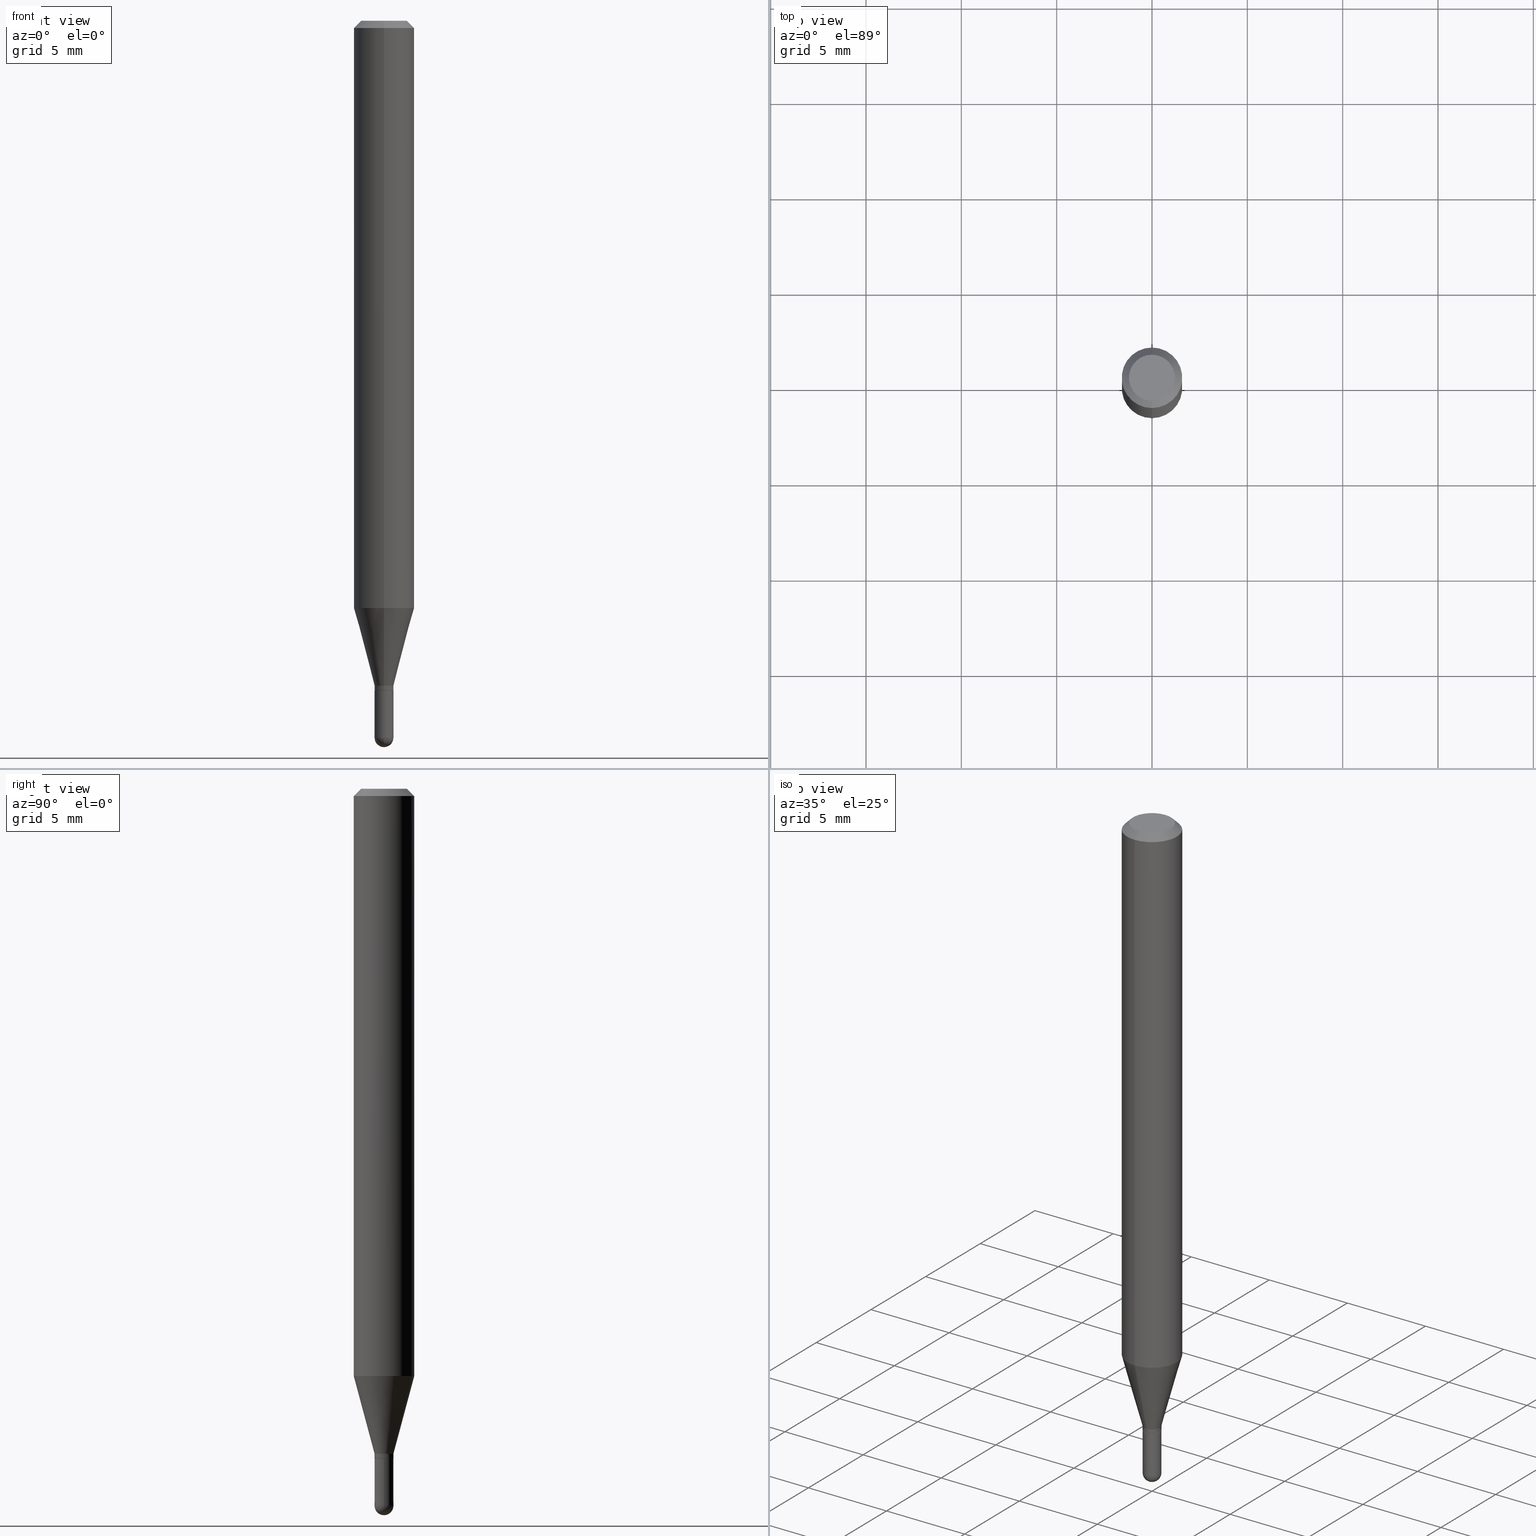
[diagram: canonical four-view strip — front | top / right | iso, engineering-drawing reading convention]
A machine part, canonical four-view strip (front | top / right | iso — engineering-drawing reading convention). The complete STEP part file that produces these views, byte-faithful:
ISO-10303-21;
HEADER;
FILE_DESCRIPTION (( 'STEP AP203' ),
    '1' );
FILE_NAME ('00477.STEP',
    '2024-03-07T17:59:33',
    ( '' ),
    ( '' ),
    'SwSTEP 2.0',
    'SolidWorks 2023',
    '' );
FILE_SCHEMA (( 'CONFIG_CONTROL_DESIGN' ));
ENDSEC;

DATA;
#1 = CARTESIAN_POINT ( 'NONE',  ( 3.382086302448005049E-29, -4.828714476369186734E-15, -1.383000000000000229 ) ) ;
#2 = ORIENTED_EDGE ( 'NONE', *, *, #397, .T. ) ;
#3 = DIRECTION ( 'NONE',  ( 1.839019923739599526E-15, 0.2588190451025248473, 0.9659258262890670910 ) ) ;
#4 = EDGE_CURVE ( 'NONE', #85, #42, #150, .T. ) ;
#5 = ORIENTED_EDGE ( 'NONE', *, *, #271, .F. ) ;
#6 = AXIS2_PLACEMENT_3D ( 'NONE', #460, #298, #258 ) ;
#7 = CYLINDRICAL_SURFACE ( 'NONE', #236, 0.01949999999999999997 ) ;
#8 = CIRCLE ( 'NONE', #255, 0.01949999999999999303 ) ;
#9 = ORIENTED_EDGE ( 'NONE', *, *, #271, .T. ) ;
#10 = EDGE_CURVE ( 'NONE', #42, #93, #144, .T. ) ;
#11 = EDGE_LOOP ( 'NONE', ( #459, #452, #421, #327 ) ) ;
#12 = FACE_OUTER_BOUND ( 'NONE', #412, .T. ) ;
#13 = ORIENTED_EDGE ( 'NONE', *, *, #367, .F. ) ;
#14 = EDGE_CURVE ( 'NONE', #360, #245, #100, .T. ) ;
#15 = ORIENTED_EDGE ( 'NONE', *, *, #418, .T. ) ;
#16 = DIRECTION ( 'NONE',  ( -1.000000000000000000, 7.105427357601001070E-15, -4.926315508542082329E-29 ) ) ;
#17 = ORIENTED_EDGE ( 'NONE', *, *, #94, .F. ) ;
#18 = ORIENTED_EDGE ( 'NONE', *, *, #484, .F. ) ;
#19 = AXIS2_PLACEMENT_3D ( 'NONE', #41, #16, #53 ) ;
#20 = CARTESIAN_POINT ( 'NONE',  ( 3.382083358954044842E-29, -4.828718691620071353E-15, -1.383000000000000229 ) ) ;
#21 = VERTEX_POINT ( 'NONE', #262 ) ;
#22 = APPROVAL_STATUS ( 'not_yet_approved' ) ;
#23 = CARTESIAN_POINT ( 'NONE',  ( -1.361677722148480659E-16, -0.01950000000000471495, -1.372999999999999998 ) ) ;
#24 = FACE_OUTER_BOUND ( 'NONE', #456, .T. ) ;
#25 = COORDINATED_UNIVERSAL_TIME_OFFSET ( 5, 0, .BEHIND. ) ;
#26 = CARTESIAN_POINT ( 'NONE',  ( 1.361677722149159819E-16, 0.01949999999999517050, -1.383000000000000229 ) ) ;
#27 = AXIS2_PLACEMENT_3D ( 'NONE', #490, #60, #386 ) ;
#28 = CONICAL_SURFACE ( 'NONE', #312, 0.01899999999999999953, 0.7853981633974718157 ) ;
#29 = LOCAL_TIME ( 12, 59, 33.00000000000000000, #498 ) ;
#30 = CARTESIAN_POINT ( 'NONE',  ( 3.668206401787426008E-31, -5.237217436409098206E-17, -0.01500000000000000812 ) ) ;
#31 = CARTESIAN_POINT ( 'NONE',  ( -1.361677722148483124E-16, -0.01950000000000481210, -1.382500000000000284 ) ) ;
#32 = DIRECTION ( 'NONE',  ( 6.982962677686265922E-15, 1.000000000000000000, -3.483106191921935554E-15 ) ) ;
#33 = DIRECTION ( 'NONE',  ( 0.000000000000000000, 0.000000000000000000, 1.000000000000000000 ) ) ;
#34 = CARTESIAN_POINT ( 'NONE',  ( 0.000000000000000000, 0.000000000000000000, 0.000000000000000000 ) ) ;
#35 = DIRECTION ( 'NONE',  ( 2.445470934524949177E-29, -3.491478290939396470E-15, -1.000000000000000000 ) ) ;
#36 = EDGE_CURVE ( 'NONE', #483, #491, #302, .T. ) ;
#37 = ADVANCED_BREP_SHAPE_REPRESENTATION ( '00477', ( #400, #403, #92 ), #369 ) ;
#38 = CLOSED_SHELL ( 'NONE', ( #208, #362, #239, #213, #86, #263, #250, #152, #128, #229, #314, #380 ) ) ;
#39 = CONICAL_SURFACE ( 'NONE', #378, 0.06250000000000000000, 0.7853981633974483900 ) ;
#40 = CARTESIAN_POINT ( 'NONE',  ( 0.01949999999999999997, -4.964886463834953365E-15, -1.383000000000000229 ) ) ;
#41 = CARTESIAN_POINT ( 'NONE',  ( 3.618848993293195667E-29, -5.171526183415615213E-15, -1.480500000000000149 ) ) ;
#42 = VERTEX_POINT ( 'NONE', #428 ) ;
#43 = ORIENTED_EDGE ( 'NONE', *, *, #209, .F. ) ;
#44 = CARTESIAN_POINT ( 'NONE',  ( 3.382086302448005049E-29, -4.828714476369186734E-15, -1.383000000000000229 ) ) ;
#45 = EDGE_CURVE ( 'NONE', #299, #360, #432, .T. ) ;
#46 = EDGE_LOOP ( 'NONE', ( #165, #9, #54, #318, #15 ) ) ;
#47 = AXIS2_PLACEMENT_3D ( 'NONE', #102, #222, #216 ) ;
#48 = ORIENTED_EDGE ( 'NONE', *, *, #269, .F. ) ;
#49 = CIRCLE ( 'NONE', #437, 0.01949999999999999303 ) ;
#50 = CARTESIAN_POINT ( 'NONE',  ( 1.350031197944528297E-16, 0.01899999999999517006, -1.383000000000000229 ) ) ;
#51 = ORIENTED_EDGE ( 'NONE', *, *, #80, .F. ) ;
#52 = ORIENTED_EDGE ( 'NONE', *, *, #94, .T. ) ;
#53 = DIRECTION ( 'NONE',  ( -7.105427357600999492E-15, -1.000000000000000000, 0.000000000000000000 ) ) ;
#54 = ORIENTED_EDGE ( 'NONE', *, *, #14, .F. ) ;
#55 = CARTESIAN_POINT ( 'NONE',  ( 3.380863566980742652E-29, -4.826968737223717493E-15, -1.382500000000000284 ) ) ;
#56 = APPROVAL_DATE_TIME ( #492, #252 ) ;
#57 = CIRCLE ( 'NONE', #303, 0.06250000000000000000 ) ;
#58 = CARTESIAN_POINT ( 'NONE',  ( 0.01949999999999999997, -1.361677722148821841E-16, 9.508544712802074656E-31 ) ) ;
#59 = COORDINATED_UNIVERSAL_TIME_OFFSET ( 5, 0, .BEHIND. ) ;
#60 = DIRECTION ( 'NONE',  ( -2.445470934524949177E-29, 3.491478290939396470E-15, 1.000000000000000000 ) ) ;
#61 = SECURITY_CLASSIFICATION_LEVEL ( 'unclassified' ) ;
#62 = CARTESIAN_POINT ( 'NONE',  ( 3.667369422145755706E-29, -5.238416038893887987E-15, -1.500000000000000222 ) ) ;
#63 = CARTESIAN_POINT ( 'NONE',  ( 2.166800807652631744E-46, -3.093611898592751008E-32, -8.860464367259179320E-18 ) ) ;
#64 = EDGE_CURVE ( 'NONE', #132, #286, #122, .T. ) ;
#65 = SPHERICAL_SURFACE ( 'NONE', #178, 0.01949999999999994446 ) ;
#66 = CARTESIAN_POINT ( 'NONE',  ( 4.440892098500920012E-16, 0.06249999999999574646, -1.212521815274538728 ) ) ;
#67 = DATE_AND_TIME ( #297, #349 ) ;
#68 = EDGE_CURVE ( 'NONE', #280, #301, #395, .T. ) ;
#69 = FACE_OUTER_BOUND ( 'NONE', #136, .T. ) ;
#70 = VECTOR ( 'NONE', #501, 39.37007874015748143 ) ;
#71 = AXIS2_PLACEMENT_3D ( 'NONE', #451, #287, #371 ) ;
#72 = APPROVAL_PERSON_ORGANIZATION ( #424, #252, #96 ) ;
#73 = EDGE_CURVE ( 'NONE', #245, #360, #201, .T. ) ;
#74 = DIRECTION ( 'NONE',  ( -2.445470934524949177E-29, 3.491478290939396470E-15, 1.000000000000000000 ) ) ;
#75 = APPROVAL ( #443, 'UNSPECIFIED' ) ;
#76 = EDGE_CURVE ( 'NONE', #363, #85, #172, .T. ) ;
#77 = CARTESIAN_POINT ( 'NONE',  ( 3.840629472727447874E-16, 0.04749999999999999362, -1.747056831868805136E-16 ) ) ;
#78 = EDGE_CURVE ( 'NONE', #93, #196, #496, .T. ) ;
#79 = CARTESIAN_POINT ( 'NONE',  ( -4.364351673553912750E-16, -0.06250000000000005551, -0.01499999999999979128 ) ) ;
#80 = EDGE_CURVE ( 'NONE', #363, #140, #295, .T. ) ;
#81 = VECTOR ( 'NONE', #406, 39.37007874015748143 ) ;
#82 = FACE_OUTER_BOUND ( 'NONE', #477, .T. ) ;
#83 = ORIENTED_EDGE ( 'NONE', *, *, #190, .T. ) ;
#84 = LINE ( 'NONE', #159, #247 ) ;
#85 = VERTEX_POINT ( 'NONE', #294 ) ;
#86 = ADVANCED_FACE ( 'NONE', ( #107 ), #246, .T. ) ;
#87 = FACE_OUTER_BOUND ( 'NONE', #46, .T. ) ;
#88 = ORIENTED_EDGE ( 'NONE', *, *, #351, .T. ) ;
#89 = ORIENTED_EDGE ( 'NONE', *, *, #315, .T. ) ;
#90 = CONICAL_SURFACE ( 'NONE', #289, 0.01899999999999999953, 0.7853981633974718157 ) ;
#91 = DIRECTION ( 'NONE',  ( -6.982962677686265922E-15, -1.000000000000000000, 0.000000000000000000 ) ) ;
#92 = AXIS2_PLACEMENT_3D ( 'NONE', #215, #33, #488 ) ;
#93 = VERTEX_POINT ( 'NONE', #461 ) ;
#94 = EDGE_CURVE ( 'NONE', #140, #42, #338, .T. ) ;
#95 = ORIENTED_EDGE ( 'NONE', *, *, #10, .T. ) ;
#96 = APPROVAL_ROLE ( '' ) ;
#97 = DIRECTION ( 'NONE',  ( -2.445470934524949177E-29, 3.491478290939396470E-15, 1.000000000000000000 ) ) ;
#98 = EDGE_CURVE ( 'NONE', #140, #363, #114, .T. ) ;
#99 = DIRECTION ( 'NONE',  ( -2.445470934524949177E-29, 3.491478290939396470E-15, 1.000000000000000000 ) ) ;
#100 = CIRCLE ( 'NONE', #108, 0.01949999999999999997 ) ;
#101 = AXIS2_PLACEMENT_3D ( 'NONE', #449, #244, #277 ) ;
#102 = CARTESIAN_POINT ( 'NONE',  ( 3.357631593102754865E-29, -4.793799693459790864E-15, -1.372999999999999998 ) ) ;
#103 = APPROVAL_PERSON_ORGANIZATION ( #232, #75, #475 ) ;
#104 = PERSON_AND_ORGANIZATION ( #195, #390 ) ;
#105 = DIRECTION ( 'NONE',  ( 6.982962677686265922E-15, 1.000000000000000000, -3.491478290939396076E-15 ) ) ;
#106 = DIRECTION ( 'NONE',  ( -2.445468806185136597E-29, 3.491481338843145583E-15, 1.000000000000000000 ) ) ;
#107 = FACE_OUTER_BOUND ( 'NONE', #370, .T. ) ;
#108 = AXIS2_PLACEMENT_3D ( 'NONE', #20, #106, #137 ) ;
#109 = VECTOR ( 'NONE', #393, 39.37007874015748143 ) ;
#110 = DIRECTION ( 'NONE',  ( 4.937700262164548042E-15, 0.7071067811865451302, -0.7071067811865499042 ) ) ;
#111 = APPROVAL_ROLE ( '' ) ;
#112 = DIRECTION ( 'NONE',  ( -2.445470934524949177E-29, 3.491478290939396076E-15, 1.000000000000000000 ) ) ;
#113 = CYLINDRICAL_SURFACE ( 'NONE', #497, 0.01949999999999992017 ) ;
#114 = CIRCLE ( 'NONE', #414, 0.01949999999999992017 ) ;
#115 = APPROVAL_DATE_TIME ( #118, #75 ) ;
#116 = CARTESIAN_POINT ( 'NONE',  ( -1.385558334731830759E-16, -0.01950000000000513822, -1.480500000000000149 ) ) ;
#117 = CARTESIAN_POINT ( 'NONE',  ( 3.357631593102754865E-29, -4.793799693459790864E-15, -1.372999999999999998 ) ) ;
#118 = DATE_AND_TIME ( #399, #281 ) ;
#119 = DIRECTION ( 'NONE',  ( -2.445468806185136597E-29, 3.491481338843145583E-15, 1.000000000000000000 ) ) ;
#120 = ORIENTED_EDGE ( 'NONE', *, *, #500, .F. ) ;
#121 = EDGE_CURVE ( 'NONE', #301, #280, #472, .T. ) ;
#122 = CIRCLE ( 'NONE', #177, 0.01949999999999999303 ) ;
#123 = CONICAL_SURFACE ( 'NONE', #185, 0.01949999999999992017, 0.2617993877991501850 ) ;
#124 = CC_DESIGN_SECURITY_CLASSIFICATION ( #379, ( #438 ) ) ;
#125 = CARTESIAN_POINT ( 'NONE',  ( 0.000000000000000000, 0.000000000000000000, 0.000000000000000000 ) ) ;
#126 = VERTEX_POINT ( 'NONE', #62 ) ;
#127 = ORIENTED_EDGE ( 'NONE', *, *, #418, .F. ) ;
#128 = ADVANCED_FACE ( 'NONE', ( #24 ), #495, .F. ) ;
#129 = FACE_OUTER_BOUND ( 'NONE', #416, .T. ) ;
#130 = ORIENTED_EDGE ( 'NONE', *, *, #121, .F. ) ;
#131 = DIRECTION ( 'NONE',  ( -2.445468806185136597E-29, 3.491481338843145583E-15, 1.000000000000000000 ) ) ;
#132 = VERTEX_POINT ( 'NONE', #261 ) ;
#133 = ADVANCED_FACE ( 'NONE', ( #220 ), #388, .F. ) ;
#134 = VECTOR ( 'NONE', #110, 39.37007874015748143 ) ;
#135 = MECHANICAL_CONTEXT ( 'NONE', #420, 'mechanical' ) ;
#136 = EDGE_LOOP ( 'NONE', ( #429, #171, #480, #17 ) ) ;
#137 = DIRECTION ( 'NONE',  ( 1.000000000000000000, -6.982962677686258033E-15, 0.000000000000000000 ) ) ;
#138 = EDGE_CURVE ( 'NONE', #280, #491, #149, .T. ) ;
#139 = DIRECTION ( 'NONE',  ( 1.000000000000000000, -6.982962677686258033E-15, 0.000000000000000000 ) ) ;
#140 = VERTEX_POINT ( 'NONE', #31 ) ;
#141 = AXIS2_PLACEMENT_3D ( 'NONE', #147, #431, #384 ) ;
#142 = APPLICATION_PROTOCOL_DEFINITION ( 'international standard', 'config_control_design', 1994, #420 ) ;
#143 = AXIS2_PLACEMENT_3D ( 'NONE', #176, #464, #105 ) ;
#144 = LINE ( 'NONE', #23, #454 ) ;
#145 = PERSON_AND_ORGANIZATION_ROLE ( 'classification_officer' ) ;
#146 = DIRECTION ( 'NONE',  ( -6.982962677686266711E-15, -1.000000000000000000, 3.491478290939396470E-15 ) ) ;
#147 = CARTESIAN_POINT ( 'NONE',  ( 3.380863566980742652E-29, -4.826968737223717493E-15, -1.382500000000000284 ) ) ;
#148 = EDGE_LOOP ( 'NONE', ( #198, #151, #95, #120 ) ) ;
#149 = LINE ( 'NONE', #434, #341 ) ;
#150 = CIRCLE ( 'NONE', #157, 0.01949999999999992017 ) ;
#151 = ORIENTED_EDGE ( 'NONE', *, *, #4, .T. ) ;
#152 = ADVANCED_FACE ( 'NONE', ( #512 ), #39, .T. ) ;
#153 = CARTESIAN_POINT ( 'NONE',  ( 3.618848993293195667E-29, -5.171526183415615213E-15, -1.480500000000000149 ) ) ;
#154 = DIRECTION ( 'NONE',  ( -6.982962677686265922E-15, -1.000000000000000000, 3.483106191921935554E-15 ) ) ;
#155 = PRODUCT_DEFINITION ( 'UNKNOWN', '', #438, #181 ) ;
#156 = LINE ( 'NONE', #405, #486 ) ;
#157 = AXIS2_PLACEMENT_3D ( 'NONE', #465, #174, #499 ) ;
#158 = PLANE ( 'NONE',  #211 ) ;
#159 = CARTESIAN_POINT ( 'NONE',  ( 1.385558334732525203E-16, 0.01949999999999512887, -1.372999999999999998 ) ) ;
#160 = EDGE_LOOP ( 'NONE', ( #330, #162, #366, #51 ) ) ;
#161 = CARTESIAN_POINT ( 'NONE',  ( 4.440892098500923957E-16, 0.06249999999999995143, -0.01500000000000022669 ) ) ;
#162 = ORIENTED_EDGE ( 'NONE', *, *, #336, .T. ) ;
#163 = AXIS2_PLACEMENT_3D ( 'NONE', #63, #335, #146 ) ;
#164 = AXIS2_PLACEMENT_3D ( 'NONE', #230, #35, #32 ) ;
#165 = ORIENTED_EDGE ( 'NONE', *, *, #484, .T. ) ;
#166 = DIRECTION ( 'NONE',  ( 1.000000000000000000, -6.982962677686260400E-15, 0.000000000000000000 ) ) ;
#167 = ORIENTED_EDGE ( 'NONE', *, *, #14, .T. ) ;
#168 = DIRECTION ( 'NONE',  ( 1.000000000000000000, -6.982962677686265922E-15, 4.876176775795935793E-29 ) ) ;
#169 = ORIENTED_EDGE ( 'NONE', *, *, #367, .T. ) ;
#170 = DIRECTION ( 'NONE',  ( 5.024295867788180719E-15, 0.7071067811865666686, 0.7071067811865284769 ) ) ;
#171 = ORIENTED_EDGE ( 'NONE', *, *, #76, .T. ) ;
#172 = LINE ( 'NONE', #344, #70 ) ;
#173 = DATE_TIME_ROLE ( 'creation_date' ) ;
#174 = DIRECTION ( 'NONE',  ( -2.445470934524949177E-29, 3.491478290939396470E-15, 1.000000000000000000 ) ) ;
#175 = EDGE_CURVE ( 'NONE', #301, #483, #401, .T. ) ;
#176 = CARTESIAN_POINT ( 'NONE',  ( 3.316907271900976096E-16, 0.04749999999999999362, -1.702754510032508993E-16 ) ) ;
#177 = AXIS2_PLACEMENT_3D ( 'NONE', #254, #182, #466 ) ;
#178 = AXIS2_PLACEMENT_3D ( 'NONE', #279, #237, #409 ) ;
#179 = AXIS2_PLACEMENT_3D ( 'NONE', #463, #352, #385 ) ;
#180 = DIRECTION ( 'NONE',  ( 2.438088387897960049E-29, -3.491481338843145188E-15, -1.000000000000000000 ) ) ;
#181 = DESIGN_CONTEXT ( 'detailed design', #448, 'design' ) ;
#182 = DIRECTION ( 'NONE',  ( -2.445468806185136597E-29, 3.491481338843145583E-15, 1.000000000000000000 ) ) ;
#183 = CARTESIAN_POINT ( 'NONE',  ( 3.668206401787426008E-31, -5.237217436409098206E-17, -0.01500000000000000812 ) ) ;
#184 = CARTESIAN_POINT ( 'NONE',  ( -0.01949999999999999997, -4.860372573415455392E-15, -1.383000000000000229 ) ) ;
#185 = AXIS2_PLACEMENT_3D ( 'NONE', #117, #74, #188 ) ;
#186 = CC_DESIGN_APPROVAL ( #75, ( #379 ) ) ;
#187 = CARTESIAN_POINT ( 'NONE',  ( 1.367794766338528106E-16, 0.01899999999999517006, -1.383000000000000229 ) ) ;
#188 = DIRECTION ( 'NONE',  ( -6.982962677686266711E-15, -1.000000000000000000, 0.000000000000000000 ) ) ;
#189 = DIRECTION ( 'NONE',  ( -2.445470934524949177E-29, 3.491478290939396470E-15, 1.000000000000000000 ) ) ;
#190 = EDGE_CURVE ( 'NONE', #196, #483, #156, .T. ) ;
#191 = FACE_OUTER_BOUND ( 'NONE', #160, .T. ) ;
#192 = CIRCLE ( 'NONE', #179, 0.01949999999999992017 ) ;
#193 = PRODUCT_RELATED_PRODUCT_CATEGORY ( 'detail', '', ( #283 ) ) ;
#194 = DIRECTION ( 'NONE',  ( -2.445468806185136597E-29, 3.491481338843145583E-15, 1.000000000000000000 ) ) ;
#195 = PERSON ( 'UNSPECIFIED', 'UNSPECIFIED', 'UNSPECIFIED', ('UNSPECIFIED'), ('UNSPECIFIED'), ('UNSPECIFIED') ) ;
#196 = VERTEX_POINT ( 'NONE', #66 ) ;
#197 = DIRECTION ( 'NONE',  ( -2.445470934524949177E-29, 3.491478290939396470E-15, 1.000000000000000000 ) ) ;
#198 = ORIENTED_EDGE ( 'NONE', *, *, #439, .F. ) ;
#199 = FACE_OUTER_BOUND ( 'NONE', #288, .T. ) ;
#200 = ORIENTED_EDGE ( 'NONE', *, *, #73, .F. ) ;
#201 = CIRCLE ( 'NONE', #272, 0.01949999999999999997 ) ;
#202 = AXIS2_PLACEMENT_3D ( 'NONE', #326, #248, #442 ) ;
#203 = CYLINDRICAL_SURFACE ( 'NONE', #321, 0.01949999999999999997 ) ;
#204 = EDGE_LOOP ( 'NONE', ( #373, #83, #410, #240 ) ) ;
#205 = APPROVAL ( #292, 'UNSPECIFIED' ) ;
#206 = CYLINDRICAL_SURFACE ( 'NONE', #101, 0.01949999999999992017 ) ;
#207 = ORIENTED_EDGE ( 'NONE', *, *, #402, .T. ) ;
#208 = ADVANCED_FACE ( 'NONE', ( #69 ), #113, .T. ) ;
#209 = EDGE_CURVE ( 'NONE', #126, #21, #329, .T. ) ;
#210 = CARTESIAN_POINT ( 'NONE',  ( -1.361677722148816418E-16, -0.01949999999999992017, 6.808382667331796237E-17 ) ) ;
#211 = AXIS2_PLACEMENT_3D ( 'NONE', #316, #112, #233 ) ;
#212 = PERSON_AND_ORGANIZATION ( #195, #390 ) ;
#213 = ADVANCED_FACE ( 'NONE', ( #308 ), #311, .T. ) ;
#214 = CARTESIAN_POINT ( 'NONE',  ( 3.382083358954044842E-29, -4.828718691620071353E-15, -1.383000000000000229 ) ) ;
#215 = CARTESIAN_POINT ( 'NONE',  ( 0.000000000000000000, 0.000000000000000000, 0.000000000000000000 ) ) ;
#216 = DIRECTION ( 'NONE',  ( -6.982962677686266711E-15, -1.000000000000000000, 0.000000000000000000 ) ) ;
#217 = ORIENTED_EDGE ( 'NONE', *, *, #36, .T. ) ;
#218 = PERSON_AND_ORGANIZATION ( #195, #390 ) ;
#219 = UNCERTAINTY_MEASURE_WITH_UNIT (LENGTH_MEASURE( 1.000000000000000082E-05 ), #381, 'distance_accuracy_value', 'NONE');
#220 = FACE_OUTER_BOUND ( 'NONE', #325, .T. ) ;
#221 = CIRCLE ( 'NONE', #202, 0.01899999999999999953 ) ;
#222 = DIRECTION ( 'NONE',  ( -2.445470934524949177E-29, 3.491478290939396470E-15, 1.000000000000000000 ) ) ;
#223 = ORIENTED_EDGE ( 'NONE', *, *, #68, .T. ) ;
#224 = CARTESIAN_POINT ( 'NONE',  ( 3.668206401787426008E-31, -5.237217436409098206E-17, -0.01500000000000000812 ) ) ;
#225 = DIRECTION ( 'NONE',  ( 6.982962677686265133E-15, 1.000000000000000000, 0.000000000000000000 ) ) ;
#226 = ORIENTED_EDGE ( 'NONE', *, *, #351, .F. ) ;
#227 = ORIENTED_EDGE ( 'NONE', *, *, #336, .F. ) ;
#228 = PERSON_AND_ORGANIZATION ( #195, #390 ) ;
#229 = ADVANCED_FACE ( 'NONE', ( #394 ), #158, .F. ) ;
#230 = CARTESIAN_POINT ( 'NONE',  ( 3.668206401787426008E-31, -5.237217436409098206E-17, -0.01500000000000000812 ) ) ;
#231 = CIRCLE ( 'NONE', #365, 0.06250000000000000000 ) ;
#232 = PERSON_AND_ORGANIZATION ( #195, #390 ) ;
#233 = DIRECTION ( 'NONE',  ( -6.982962677686265922E-15, -1.000000000000000000, 3.491478290939396076E-15 ) ) ;
#234 = FACE_OUTER_BOUND ( 'NONE', #467, .T. ) ;
#235 = CARTESIAN_POINT ( 'NONE',  ( 2.965186856731312927E-29, -4.233493595321480770E-15, -1.212521815274538506 ) ) ;
#236 = AXIS2_PLACEMENT_3D ( 'NONE', #125, #119, #168 ) ;
#237 = DIRECTION ( 'NONE',  ( -1.000000000000000000, 6.982962677686265922E-15, -4.883557194083112340E-29 ) ) ;
#238 = ORIENTED_EDGE ( 'NONE', *, *, #10, .F. ) ;
#239 = ADVANCED_FACE ( 'NONE', ( #468 ), #415, .T. ) ;
#240 = ORIENTED_EDGE ( 'NONE', *, *, #397, .F. ) ;
#241 = CC_DESIGN_DATE_AND_TIME_ASSIGNMENT ( #407, #354, ( #379 ) ) ;
#242 = CARTESIAN_POINT ( 'NONE',  ( 1.385558334732523231E-16, 0.01949999999999503172, -1.382500000000000284 ) ) ;
#243 = ORIENTED_EDGE ( 'NONE', *, *, #500, .T. ) ;
#244 = DIRECTION ( 'NONE',  ( -2.445470934524949177E-29, 3.491478290939396470E-15, 1.000000000000000000 ) ) ;
#245 = VERTEX_POINT ( 'NONE', #184 ) ;
#246 = CONICAL_SURFACE ( 'NONE', #47, 0.01949999999999992017, 0.2617993877991501850 ) ;
#247 = VECTOR ( 'NONE', #3, 39.37007874015748143 ) ;
#248 = DIRECTION ( 'NONE',  ( -2.445470934524949177E-29, 3.491478290939396470E-15, 1.000000000000000000 ) ) ;
#249 = ORIENTED_EDGE ( 'NONE', *, *, #76, .F. ) ;
#250 = ADVANCED_FACE ( 'NONE', ( #508 ), #398, .T. ) ;
#251 = EDGE_LOOP ( 'NONE', ( #487, #130, #291, #217 ) ) ;
#252 = APPROVAL ( #22, 'UNSPECIFIED' ) ;
#253 = CALENDAR_DATE ( 2024, 7, 3 ) ;
#254 = CARTESIAN_POINT ( 'NONE',  ( 3.620516567557095727E-29, -5.169138122157277171E-15, -1.480500000000000149 ) ) ;
#255 = AXIS2_PLACEMENT_3D ( 'NONE', #317, #319, #324 ) ;
#256 = LENGTH_MEASURE_WITH_UNIT ( LENGTH_MEASURE( 0.02539999999999999897 ), #469 );
#257 = CC_DESIGN_APPROVAL ( #252, ( #438 ) ) ;
#258 = DIRECTION ( 'NONE',  ( -6.982962677686265922E-15, -1.000000000000000000, 4.370956789862821150E-15 ) ) ;
#259 = ORIENTED_EDGE ( 'NONE', *, *, #98, .F. ) ;
#260 = PERSON_AND_ORGANIZATION_ROLE ( 'design_supplier' ) ;
#261 = CARTESIAN_POINT ( 'NONE',  ( -0.01949999999999999303, -4.860372573415455392E-15, -1.480500000000000149 ) ) ;
#262 = CARTESIAN_POINT ( 'NONE',  ( 1.361677722149181512E-16, 0.01949999999999479927, -1.480500000000000149 ) ) ;
#263 = ADVANCED_FACE ( 'NONE', ( #440 ), #123, .T. ) ;
#264 = AXIS2_PLACEMENT_3D ( 'NONE', #34, #189, #471 ) ;
#265 = DIRECTION ( 'NONE',  ( -2.445470934524948897E-29, 3.491478290939396076E-15, 1.000000000000000000 ) ) ;
#266 = EDGE_CURVE ( 'NONE', #491, #483, #57, .T. ) ;
#267 = DIRECTION ( 'NONE',  ( 2.445470934524949177E-29, -3.491478290939396470E-15, -1.000000000000000000 ) ) ;
#268 =( NAMED_UNIT ( * ) PLANE_ANGLE_UNIT ( ) SI_UNIT ( $, .RADIAN. ) );
#269 = EDGE_CURVE ( 'NONE', #345, #140, #310, .T. ) ;
#270 = DIRECTION ( 'NONE',  ( -6.982962677686266711E-15, -1.000000000000000000, 3.491478290939396865E-15 ) ) ;
#271 = EDGE_CURVE ( 'NONE', #132, #245, #433, .T. ) ;
#272 = AXIS2_PLACEMENT_3D ( 'NONE', #214, #493, #139 ) ;
#273 = DIRECTION ( 'NONE',  ( -2.445470934524948897E-29, 3.491478290939396076E-15, 1.000000000000000000 ) ) ;
#274 = VECTOR ( 'NONE', #170, 39.37007874015748143 ) ;
#275 = LOCAL_TIME ( 12, 59, 33.00000000000000000, #59 ) ;
#276 = CARTESIAN_POINT ( 'NONE',  ( 0.01949999999999999303, -5.135096179103555879E-15, -1.480500000000000149 ) ) ;
#277 = DIRECTION ( 'NONE',  ( -6.982962677686266711E-15, -1.000000000000000000, 3.491478290939396865E-15 ) ) ;
#278 = PRODUCT_DEFINITION_SHAPE ( 'NONE', 'NONE',  #155 ) ;
#279 = CARTESIAN_POINT ( 'NONE',  ( 3.618848993293195667E-29, -5.171526183415615213E-15, -1.480500000000000149 ) ) ;
#280 = VERTEX_POINT ( 'NONE', #346 ) ;
#281 = LOCAL_TIME ( 12, 59, 33.00000000000000000, #511 ) ;
#282 = DIRECTION ( 'NONE',  ( -2.445470934524949177E-29, 3.491478290939396470E-15, 1.000000000000000000 ) ) ;
#283 = PRODUCT ( '00477', '00477', '', ( #135 ) ) ;
#284 = EDGE_LOOP ( 'NONE', ( #450, #243, #2, #305 ) ) ;
#285 = CARTESIAN_POINT ( 'NONE',  ( -4.364351673553916201E-16, -0.06250000000000000000, 2.182173931837122794E-16 ) ) ;
#286 = VERTEX_POINT ( 'NONE', #116 ) ;
#287 = DIRECTION ( 'NONE',  ( -1.000000000000000000, 6.982962677686265922E-15, -4.883557194083112340E-29 ) ) ;
#288 = EDGE_LOOP ( 'NONE', ( #43, #169, #375, #18 ) ) ;
#289 = AXIS2_PLACEMENT_3D ( 'NONE', #1, #282, #419 ) ;
#290 = APPROVAL_DATE_TIME ( #342, #205 ) ;
#291 = ORIENTED_EDGE ( 'NONE', *, *, #175, .T. ) ;
#292 = APPROVAL_STATUS ( 'not_yet_approved' ) ;
#293 = DIRECTION ( 'NONE',  ( -6.982962677686265922E-15, -1.000000000000000000, 3.483106191921935554E-15 ) ) ;
#294 = CARTESIAN_POINT ( 'NONE',  ( 2.913225216616725443E-16, 0.01949999999999512887, -1.372999999999999998 ) ) ;
#295 = CIRCLE ( 'NONE', #141, 0.01949999999999992017 ) ;
#296 = CIRCLE ( 'NONE', #19, 0.01949999999999994446 ) ;
#297 = CALENDAR_DATE ( 2024, 7, 3 ) ;
#298 = DIRECTION ( 'NONE',  ( -2.445470934524949177E-29, 3.491478290939396470E-15, 1.000000000000000000 ) ) ;
#299 = VERTEX_POINT ( 'NONE', #276 ) ;
#300 = ORIENTED_EDGE ( 'NONE', *, *, #45, .T. ) ;
#301 = VERTEX_POINT ( 'NONE', #77 ) ;
#302 = CIRCLE ( 'NONE', #377, 0.06250000000000000000 ) ;
#303 = AXIS2_PLACEMENT_3D ( 'NONE', #183, #304, #154 ) ;
#304 = DIRECTION ( 'NONE',  ( -2.445470934524949177E-29, 3.491478290939396470E-15, 1.000000000000000000 ) ) ;
#305 = ORIENTED_EDGE ( 'NONE', *, *, #36, .F. ) ;
#306 = CC_DESIGN_PERSON_AND_ORGANIZATION_ASSIGNMENT ( #494, #260, ( #438 ) ) ;
#307 = PERSON_AND_ORGANIZATION ( #195, #390 ) ;
#308 = FACE_OUTER_BOUND ( 'NONE', #204, .T. ) ;
#309 = CALENDAR_DATE ( 2024, 7, 3 ) ;
#310 = LINE ( 'NONE', #503, #109 ) ;
#311 = CYLINDRICAL_SURFACE ( 'NONE', #426, 0.06250000000000000000 ) ;
#312 = AXIS2_PLACEMENT_3D ( 'NONE', #359, #478, #91 ) ;
#313 = ADVANCED_FACE ( 'NONE', ( #234 ), #65, .T. ) ;
#314 = ADVANCED_FACE ( 'NONE', ( #191 ), #28, .T. ) ;
#315 = EDGE_CURVE ( 'NONE', #286, #299, #8, .T. ) ;
#316 = CARTESIAN_POINT ( 'NONE',  ( 3.382086302448005049E-29, -4.828714476369186734E-15, -1.383000000000000229 ) ) ;
#317 = CARTESIAN_POINT ( 'NONE',  ( 3.620516567557095727E-29, -5.169138122157277171E-15, -1.480500000000000149 ) ) ;
#318 = ORIENTED_EDGE ( 'NONE', *, *, #45, .F. ) ;
#319 = DIRECTION ( 'NONE',  ( -2.445468806185136597E-29, 3.491481338843145583E-15, 1.000000000000000000 ) ) ;
#320 = EDGE_LOOP ( 'NONE', ( #226, #227 ) ) ;
#321 = AXIS2_PLACEMENT_3D ( 'NONE', #322, #194, #445 ) ;
#322 = CARTESIAN_POINT ( 'NONE',  ( 0.000000000000000000, 0.000000000000000000, 0.000000000000000000 ) ) ;
#323 = ORIENTED_EDGE ( 'NONE', *, *, #78, .F. ) ;
#324 = DIRECTION ( 'NONE',  ( 1.000000000000000000, -6.982962677686260400E-15, 0.000000000000000000 ) ) ;
#325 = EDGE_LOOP ( 'NONE', ( #167, #333 ) ) ;
#326 = CARTESIAN_POINT ( 'NONE',  ( 3.382086302448005049E-29, -4.828714476369186734E-15, -1.383000000000000229 ) ) ;
#327 = ORIENTED_EDGE ( 'NONE', *, *, #175, .F. ) ;
#328 = CLOSED_SHELL ( 'NONE', ( #339, #444, #133, #313, #422 ) ) ;
#329 = CIRCLE ( 'NONE', #455, 0.01949999999999994446 ) ;
#330 = ORIENTED_EDGE ( 'NONE', *, *, #402, .F. ) ;
#331 = PERSON_AND_ORGANIZATION_ROLE ( 'creator' ) ;
#332 = DIRECTION ( 'NONE',  ( -2.445470934524949177E-29, 3.491478290939396470E-15, 1.000000000000000000 ) ) ;
#333 = ORIENTED_EDGE ( 'NONE', *, *, #73, .T. ) ;
#334 = PERSON_AND_ORGANIZATION_ROLE ( 'design_owner' ) ;
#335 = DIRECTION ( 'NONE',  ( -2.445470934524949177E-29, 3.491478290939396470E-15, 1.000000000000000000 ) ) ;
#336 = EDGE_CURVE ( 'NONE', #505, #345, #221, .T. ) ;
#337 = PERSON_AND_ORGANIZATION_ROLE ( 'creator' ) ;
#338 = LINE ( 'NONE', #210, #340 ) ;
#339 = ADVANCED_FACE ( 'NONE', ( #87 ), #7, .T. ) ;
#340 = VECTOR ( 'NONE', #265, 39.37007874015748143 ) ;
#341 = VECTOR ( 'NONE', #507, 39.37007874015748143 ) ;
#342 = DATE_AND_TIME ( #387, #275 ) ;
#343 = DIRECTION ( 'NONE',  ( -1.000000000000000000, 6.982962677686265922E-15, -4.876176775795935793E-29 ) ) ;
#344 = CARTESIAN_POINT ( 'NONE',  ( 1.385558334732189444E-16, 0.01949999999999992017, -6.808382667331796237E-17 ) ) ;
#345 = VERTEX_POINT ( 'NONE', #374 ) ;
#346 = CARTESIAN_POINT ( 'NONE',  ( -3.773273898774340269E-16, -0.04749999999999999362, 1.569847544523621303E-16 ) ) ;
#347 = ORIENTED_EDGE ( 'NONE', *, *, #4, .F. ) ;
#348 = AXIS2_PLACEMENT_3D ( 'NONE', #361, #411, #166 ) ;
#349 = LOCAL_TIME ( 12, 59, 33.00000000000000000, #430 ) ;
#350 = DIRECTION ( 'NONE',  ( -6.982962677686265922E-15, -1.000000000000000000, 3.491478290939396470E-15 ) ) ;
#351 = EDGE_CURVE ( 'NONE', #345, #505, #479, .T. ) ;
#352 = DIRECTION ( 'NONE',  ( -2.445470934524949177E-29, 3.491478290939396470E-15, 1.000000000000000000 ) ) ;
#353 = DIRECTION ( 'NONE',  ( -2.445470934524949177E-29, 3.491478290939396470E-15, 1.000000000000000000 ) ) ;
#354 = DATE_TIME_ROLE ( 'classification_date' ) ;
#355 = CARTESIAN_POINT ( 'NONE',  ( -0.01949999999999999997, 1.385558334732195360E-16, -9.591923425997065392E-31 ) ) ;
#356 = CARTESIAN_POINT ( 'NONE',  ( 4.364351673553919652E-16, 0.06249999999999995143, -0.01500000000000022669 ) ) ;
#357 = VECTOR ( 'NONE', #473, 39.37007874015748143 ) ;
#358 = SHAPE_DEFINITION_REPRESENTATION ( #278, #37 ) ;
#359 = CARTESIAN_POINT ( 'NONE',  ( 3.382086302448005049E-29, -4.828714476369186734E-15, -1.383000000000000229 ) ) ;
#360 = VERTEX_POINT ( 'NONE', #40 ) ;
#361 = CARTESIAN_POINT ( 'NONE',  ( 3.620516567557095727E-29, -5.169138122157277171E-15, -1.480500000000000149 ) ) ;
#362 = ADVANCED_FACE ( 'NONE', ( #82 ), #90, .T. ) ;
#363 = VERTEX_POINT ( 'NONE', #242 ) ;
#364 = SPHERICAL_SURFACE ( 'NONE', #71, 0.01949999999999994446 ) ;
#365 = AXIS2_PLACEMENT_3D ( 'NONE', #235, #99, #458 ) ;
#366 = ORIENTED_EDGE ( 'NONE', *, *, #269, .T. ) ;
#367 = EDGE_CURVE ( 'NONE', #126, #286, #296, .T. ) ;
#368 = CIRCLE ( 'NONE', #348, 0.01949999999999999303 ) ;
#369 =( GEOMETRIC_REPRESENTATION_CONTEXT ( 3 ) GLOBAL_UNCERTAINTY_ASSIGNED_CONTEXT ( ( #219 ) ) GLOBAL_UNIT_ASSIGNED_CONTEXT ( ( #381, #268, #435 ) ) REPRESENTATION_CONTEXT ( 'NONE', 'WORKASPACE' ) );
#370 = EDGE_LOOP ( 'NONE', ( #457, #392, #323, #238 ) ) ;
#371 = DIRECTION ( 'NONE',  ( 6.982962677686265922E-15, 1.000000000000000000, 0.000000000000000000 ) ) ;
#372 = ORIENTED_EDGE ( 'NONE', *, *, #209, .T. ) ;
#373 = ORIENTED_EDGE ( 'NONE', *, *, #78, .T. ) ;
#374 = CARTESIAN_POINT ( 'NONE',  ( -1.326762908760052313E-16, -0.01900000000000482553, -1.383000000000000229 ) ) ;
#375 = ORIENTED_EDGE ( 'NONE', *, *, #64, .F. ) ;
#376 = DIRECTION ( 'NONE',  ( -6.982962677686266711E-15, -1.000000000000000000, 0.000000000000000000 ) ) ;
#377 = AXIS2_PLACEMENT_3D ( 'NONE', #30, #97, #293 ) ;
#378 = AXIS2_PLACEMENT_3D ( 'NONE', #224, #267, #436 ) ;
#379 = SECURITY_CLASSIFICATION ( '', '', #61 ) ;
#380 = ADVANCED_FACE ( 'NONE', ( #12 ), #206, .T. ) ;
#381 =( CONVERSION_BASED_UNIT ( 'INCH', #256 ) LENGTH_UNIT ( ) NAMED_UNIT ( #383 ) );
#382 = CC_DESIGN_PERSON_AND_ORGANIZATION_ASSIGNMENT ( #218, #145, ( #379 ) ) ;
#383 = DIMENSIONAL_EXPONENTS ( 1.000000000000000000, 0.000000000000000000, 0.000000000000000000, 0.000000000000000000, 0.000000000000000000, 0.000000000000000000, 0.000000000000000000 ) ;
#384 = DIRECTION ( 'NONE',  ( -6.982962677686266711E-15, -1.000000000000000000, 0.000000000000000000 ) ) ;
#385 = DIRECTION ( 'NONE',  ( -6.982962677686266711E-15, -1.000000000000000000, 0.000000000000000000 ) ) ;
#386 = DIRECTION ( 'NONE',  ( -6.982962677686266711E-15, -1.000000000000000000, 3.491478290939396470E-15 ) ) ;
#387 = CALENDAR_DATE ( 2024, 7, 3 ) ;
#388 = PLANE ( 'NONE',  #396 ) ;
#389 = AXIS2_PLACEMENT_3D ( 'NONE', #44, #197, #485 ) ;
#390 = ORGANIZATION ( 'UNSPECIFIED', 'UNSPECIFIED', '' ) ;
#391 = DIRECTION ( 'NONE',  ( -2.445468806185136877E-29, 3.491481338843145188E-15, 1.000000000000000000 ) ) ;
#392 = ORIENTED_EDGE ( 'NONE', *, *, #439, .T. ) ;
#393 = DIRECTION ( 'NONE',  ( -4.937700262164664794E-15, -0.7071067811865617836, 0.7071067811865333619 ) ) ;
#394 = FACE_OUTER_BOUND ( 'NONE', #320, .T. ) ;
#395 = CIRCLE ( 'NONE', #163, 0.04749999999999999362 ) ;
#396 = AXIS2_PLACEMENT_3D ( 'NONE', #26, #180, #343 ) ;
#397 = EDGE_CURVE ( 'NONE', #93, #491, #476, .T. ) ;
#398 = CYLINDRICAL_SURFACE ( 'NONE', #264, 0.06250000000000000000 ) ;
#399 = CALENDAR_DATE ( 2024, 7, 3 ) ;
#400 = MANIFOLD_SOLID_BREP ( 'Body-Move/Copy2[1]', #328 ) ;
#401 = LINE ( 'NONE', #356, #134 ) ;
#402 = EDGE_CURVE ( 'NONE', #505, #363, #413, .T. ) ;
#403 = MANIFOLD_SOLID_BREP ( 'Body-Move/Copy2[2]', #38 ) ;
#404 = CC_DESIGN_PERSON_AND_ORGANIZATION_ASSIGNMENT ( #212, #334, ( #283 ) ) ;
#405 = CARTESIAN_POINT ( 'NONE',  ( 4.440892098500625669E-16, 0.06250000000000000000, -2.182173931837122794E-16 ) ) ;
#406 = DIRECTION ( 'NONE',  ( -2.445470934524948897E-29, 3.491478290939396076E-15, 1.000000000000000000 ) ) ;
#407 = DATE_AND_TIME ( #309, #446 ) ;
#408 = CC_DESIGN_PERSON_AND_ORGANIZATION_ASSIGNMENT ( #228, #337, ( #438 ) ) ;
#409 = DIRECTION ( 'NONE',  ( 6.982962677686265922E-15, 1.000000000000000000, 0.000000000000000000 ) ) ;
#410 = ORIENTED_EDGE ( 'NONE', *, *, #266, .F. ) ;
#411 = DIRECTION ( 'NONE',  ( -2.445468806185136597E-29, 3.491481338843145583E-15, 1.000000000000000000 ) ) ;
#412 = EDGE_LOOP ( 'NONE', ( #249, #423, #52, #347 ) ) ;
#413 = LINE ( 'NONE', #50, #274 ) ;
#414 = AXIS2_PLACEMENT_3D ( 'NONE', #55, #332, #376 ) ;
#415 = CONICAL_SURFACE ( 'NONE', #164, 0.06250000000000000000, 0.7853981633974483900 ) ;
#416 = EDGE_LOOP ( 'NONE', ( #5, #502, #89, #300, #200 ) ) ;
#417 = CC_DESIGN_APPROVAL ( #205, ( #155 ) ) ;
#418 = EDGE_CURVE ( 'NONE', #299, #21, #368, .T. ) ;
#419 = DIRECTION ( 'NONE',  ( -6.982962677686265922E-15, -1.000000000000000000, 0.000000000000000000 ) ) ;
#420 = APPLICATION_CONTEXT ( 'configuration controlled 3d designs of mechanical parts and assemblies' ) ;
#421 = ORIENTED_EDGE ( 'NONE', *, *, #266, .T. ) ;
#422 = ADVANCED_FACE ( 'NONE', ( #129 ), #203, .T. ) ;
#423 = ORIENTED_EDGE ( 'NONE', *, *, #80, .T. ) ;
#424 = PERSON_AND_ORGANIZATION ( #195, #390 ) ;
#425 = DIRECTION ( 'NONE',  ( -1.807323732225329350E-15, -0.2588190451025180194, 0.9659258262890689783 ) ) ;
#426 = AXIS2_PLACEMENT_3D ( 'NONE', #470, #474, #350 ) ;
#427 = APPLICATION_PROTOCOL_DEFINITION ( 'international standard', 'config_control_design', 1994, #448 ) ;
#428 = CARTESIAN_POINT ( 'NONE',  ( -1.361677722148480659E-16, -0.01950000000000471495, -1.372999999999999998 ) ) ;
#429 = ORIENTED_EDGE ( 'NONE', *, *, #98, .T. ) ;
#430 = COORDINATED_UNIVERSAL_TIME_OFFSET ( 5, 0, .BEHIND. ) ;
#431 = DIRECTION ( 'NONE',  ( -2.445470934524949177E-29, 3.491478290939396470E-15, 1.000000000000000000 ) ) ;
#432 = LINE ( 'NONE', #58, #506 ) ;
#433 = LINE ( 'NONE', #355, #357 ) ;
#434 = CARTESIAN_POINT ( 'NONE',  ( -4.287811248607203282E-16, -0.06250000000000005551, -0.01499999999999979128 ) ) ;
#435 =( NAMED_UNIT ( * ) SI_UNIT ( $, .STERADIAN. ) SOLID_ANGLE_UNIT ( ) );
#436 = DIRECTION ( 'NONE',  ( 6.982962677686265922E-15, 1.000000000000000000, -3.483106191921935554E-15 ) ) ;
#437 = AXIS2_PLACEMENT_3D ( 'NONE', #482, #131, #453 ) ;
#438 = PRODUCT_DEFINITION_FORMATION_WITH_SPECIFIED_SOURCE ( 'ANY', '', #283, .NOT_KNOWN. ) ;
#439 = EDGE_CURVE ( 'NONE', #85, #196, #84, .T. ) ;
#440 = FACE_OUTER_BOUND ( 'NONE', #148, .T. ) ;
#441 = CARTESIAN_POINT ( 'NONE',  ( 0.000000000000000000, 0.000000000000000000, 0.000000000000000000 ) ) ;
#442 = DIRECTION ( 'NONE',  ( -6.982962677686265922E-15, -1.000000000000000000, 0.000000000000000000 ) ) ;
#443 = APPROVAL_STATUS ( 'not_yet_approved' ) ;
#444 = ADVANCED_FACE ( 'NONE', ( #199 ), #364, .T. ) ;
#445 = DIRECTION ( 'NONE',  ( 1.000000000000000000, -6.982962677686265922E-15, 4.876176775795935793E-29 ) ) ;
#446 = LOCAL_TIME ( 12, 59, 33.00000000000000000, #25 ) ;
#447 = ORIENTED_EDGE ( 'NONE', *, *, #121, .T. ) ;
#448 = APPLICATION_CONTEXT ( 'configuration controlled 3d designs of mechanical parts and assemblies' ) ;
#449 = CARTESIAN_POINT ( 'NONE',  ( 0.000000000000000000, 0.000000000000000000, 0.000000000000000000 ) ) ;
#450 = ORIENTED_EDGE ( 'NONE', *, *, #190, .F. ) ;
#451 = CARTESIAN_POINT ( 'NONE',  ( 3.618848993293195667E-29, -5.171526183415615213E-15, -1.480500000000000149 ) ) ;
#452 = ORIENTED_EDGE ( 'NONE', *, *, #138, .T. ) ;
#453 = DIRECTION ( 'NONE',  ( 1.000000000000000000, -6.982962677686260400E-15, 0.000000000000000000 ) ) ;
#454 = VECTOR ( 'NONE', #425, 39.37007874015749564 ) ;
#455 = AXIS2_PLACEMENT_3D ( 'NONE', #153, #510, #225 ) ;
#456 = EDGE_LOOP ( 'NONE', ( #447, #223 ) ) ;
#457 = ORIENTED_EDGE ( 'NONE', *, *, #509, .T. ) ;
#458 = DIRECTION ( 'NONE',  ( -6.982962677686265922E-15, -1.000000000000000000, 4.370956789862821150E-15 ) ) ;
#459 = ORIENTED_EDGE ( 'NONE', *, *, #68, .F. ) ;
#460 = CARTESIAN_POINT ( 'NONE',  ( 2.965186856731312927E-29, -4.233493595321480770E-15, -1.212521815274538506 ) ) ;
#461 = CARTESIAN_POINT ( 'NONE',  ( -4.364351673553621364E-16, -0.06250000000000424660, -1.212521815274538284 ) ) ;
#462 = APPROVAL_PERSON_ORGANIZATION ( #104, #205, #111 ) ;
#463 = CARTESIAN_POINT ( 'NONE',  ( 3.357631593102754865E-29, -4.793799693459790864E-15, -1.372999999999999998 ) ) ;
#464 = DIRECTION ( 'NONE',  ( 2.445470934524949177E-29, -3.491478290939396076E-15, -1.000000000000000000 ) ) ;
#465 = CARTESIAN_POINT ( 'NONE',  ( 3.357631593102754865E-29, -4.793799693459790864E-15, -1.372999999999999998 ) ) ;
#466 = DIRECTION ( 'NONE',  ( 1.000000000000000000, -6.982962677686260400E-15, 0.000000000000000000 ) ) ;
#467 = EDGE_LOOP ( 'NONE', ( #13, #372, #127, #481 ) ) ;
#468 = FACE_OUTER_BOUND ( 'NONE', #11, .T. ) ;
#469 =( LENGTH_UNIT ( ) NAMED_UNIT ( * ) SI_UNIT ( $, .METRE. ) );
#470 = CARTESIAN_POINT ( 'NONE',  ( 0.000000000000000000, 0.000000000000000000, 0.000000000000000000 ) ) ;
#471 = DIRECTION ( 'NONE',  ( -6.982962677686265922E-15, -1.000000000000000000, 3.491478290939396470E-15 ) ) ;
#472 = CIRCLE ( 'NONE', #27, 0.04749999999999999362 ) ;
#473 = DIRECTION ( 'NONE',  ( -2.445468806185136877E-29, 3.491481338843145188E-15, 1.000000000000000000 ) ) ;
#474 = DIRECTION ( 'NONE',  ( -2.445470934524949177E-29, 3.491478290939396470E-15, 1.000000000000000000 ) ) ;
#475 = APPROVAL_ROLE ( '' ) ;
#476 = LINE ( 'NONE', #285, #81 ) ;
#477 = EDGE_LOOP ( 'NONE', ( #88, #207, #259, #48 ) ) ;
#478 = DIRECTION ( 'NONE',  ( -2.445470934524949177E-29, 3.491478290939396470E-15, 1.000000000000000000 ) ) ;
#479 = CIRCLE ( 'NONE', #389, 0.01899999999999999953 ) ;
#480 = ORIENTED_EDGE ( 'NONE', *, *, #509, .F. ) ;
#481 = ORIENTED_EDGE ( 'NONE', *, *, #315, .F. ) ;
#482 = CARTESIAN_POINT ( 'NONE',  ( 3.620516567557095727E-29, -5.169138122157277171E-15, -1.480500000000000149 ) ) ;
#483 = VERTEX_POINT ( 'NONE', #161 ) ;
#484 = EDGE_CURVE ( 'NONE', #21, #132, #49, .T. ) ;
#485 = DIRECTION ( 'NONE',  ( -6.982962677686265922E-15, -1.000000000000000000, 0.000000000000000000 ) ) ;
#486 = VECTOR ( 'NONE', #273, 39.37007874015748143 ) ;
#487 = ORIENTED_EDGE ( 'NONE', *, *, #138, .F. ) ;
#488 = DIRECTION ( 'NONE',  ( 1.000000000000000000, 0.000000000000000000, 0.000000000000000000 ) ) ;
#489 = CC_DESIGN_PERSON_AND_ORGANIZATION_ASSIGNMENT ( #307, #331, ( #155 ) ) ;
#490 = CARTESIAN_POINT ( 'NONE',  ( 2.166800807652631744E-46, -3.093611898592751008E-32, -8.860464367259179320E-18 ) ) ;
#491 = VERTEX_POINT ( 'NONE', #79 ) ;
#492 = DATE_AND_TIME ( #253, #29 ) ;
#493 = DIRECTION ( 'NONE',  ( -2.445468806185136597E-29, 3.491481338843145583E-15, 1.000000000000000000 ) ) ;
#494 = PERSON_AND_ORGANIZATION ( #195, #390 ) ;
#495 = PLANE ( 'NONE',  #143 ) ;
#496 = CIRCLE ( 'NONE', #6, 0.06250000000000000000 ) ;
#497 = AXIS2_PLACEMENT_3D ( 'NONE', #441, #353, #270 ) ;
#498 = COORDINATED_UNIVERSAL_TIME_OFFSET ( 5, 0, .BEHIND. ) ;
#499 = DIRECTION ( 'NONE',  ( -6.982962677686266711E-15, -1.000000000000000000, 0.000000000000000000 ) ) ;
#500 = EDGE_CURVE ( 'NONE', #196, #93, #231, .T. ) ;
#501 = DIRECTION ( 'NONE',  ( -2.445470934524948897E-29, 3.491478290939396076E-15, 1.000000000000000000 ) ) ;
#502 = ORIENTED_EDGE ( 'NONE', *, *, #64, .T. ) ;
#503 = CARTESIAN_POINT ( 'NONE',  ( -1.326762908760052313E-16, -0.01900000000000482553, -1.383000000000000229 ) ) ;
#504 = CC_DESIGN_DATE_AND_TIME_ASSIGNMENT ( #67, #173, ( #155 ) ) ;
#505 = VERTEX_POINT ( 'NONE', #187 ) ;
#506 = VECTOR ( 'NONE', #391, 39.37007874015748143 ) ;
#507 = DIRECTION ( 'NONE',  ( -4.851104656540964275E-15, -0.7071067811865500152, -0.7071067811865450192 ) ) ;
#508 = FACE_OUTER_BOUND ( 'NONE', #284, .T. ) ;
#509 = EDGE_CURVE ( 'NONE', #42, #85, #192, .T. ) ;
#510 = DIRECTION ( 'NONE',  ( 1.000000000000000000, -6.982962677686265922E-15, 4.883557194083112340E-29 ) ) ;
#511 = COORDINATED_UNIVERSAL_TIME_OFFSET ( 5, 0, .BEHIND. ) ;
#512 = FACE_OUTER_BOUND ( 'NONE', #251, .T. ) ;
ENDSEC;
END-ISO-10303-21;
